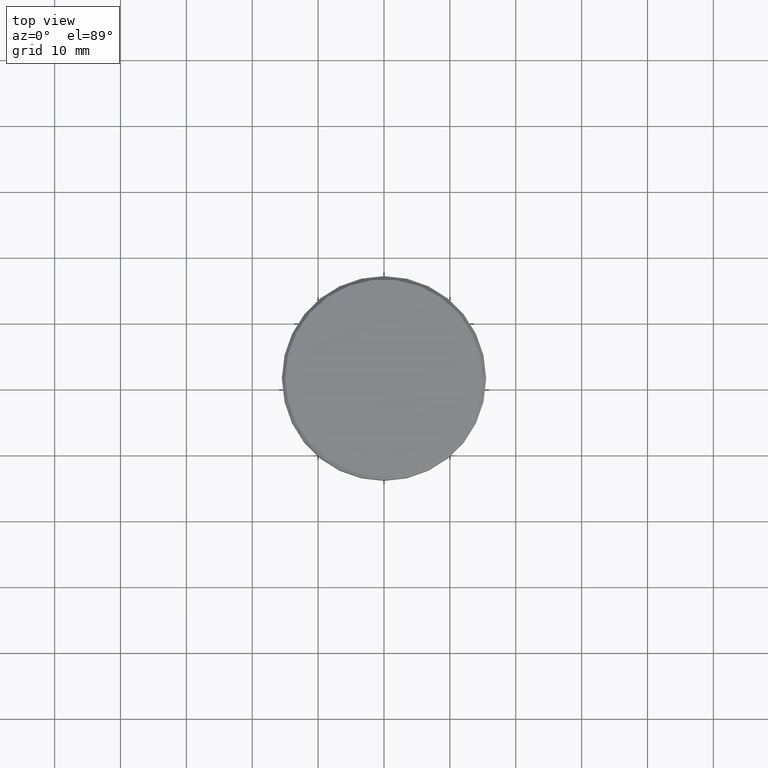
[diagram: clean part render]
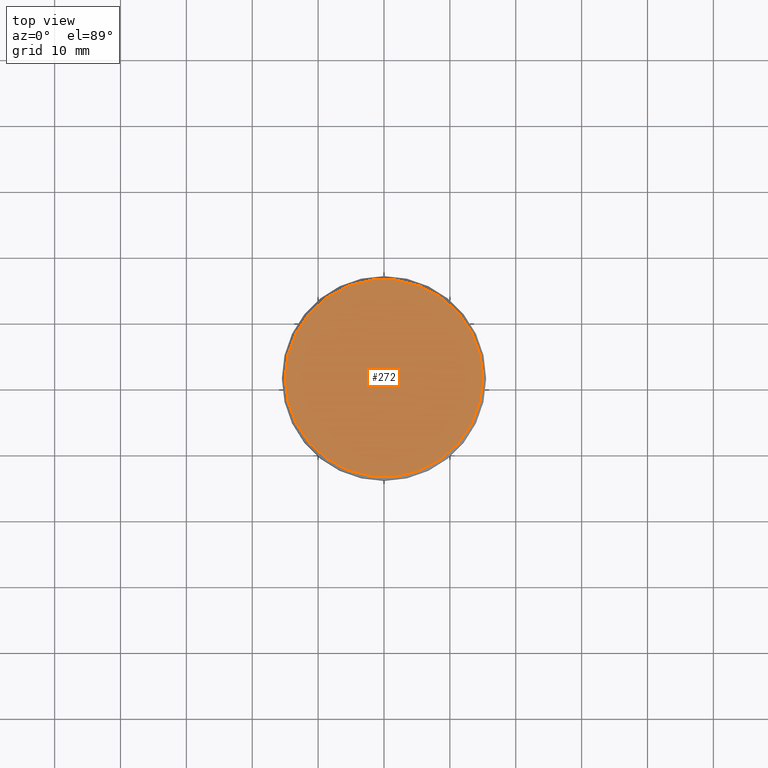
[diagram: same view with one face highlighted and labeled with its STEP entity id]
A machine part, top view. The second image highlights one B-rep face of the part: STEP entity #272.
In plain terms, the highlighted planar face has unit normal (0, -0, 1).
Its self-contained STEP definition (entity closure, byte-faithful):
#15 = CARTESIAN_POINT ( 'NONE',  ( 0.000000000000000000, 0.000000000000000000, 0.000000000000000000 ) ) ;
#138 = ORIENTED_EDGE ( 'NONE', *, *, #340, .T. ) ;
#151 = VERTEX_POINT ( 'NONE', #970 ) ;
#206 = ORIENTED_EDGE ( 'NONE', *, *, #1120, .T. ) ;
#272 = ADVANCED_FACE ( 'NONE', ( #886 ), #801, .T. ) ;
#336 = CIRCLE ( 'NONE', #818, 15.00000000000000000 ) ;
#340 = EDGE_CURVE ( 'NONE', #151, #879, #1148, .T. ) ;
#342 = DIRECTION ( 'NONE',  ( 1.000000000000000000, 0.000000000000000000, 0.000000000000000000 ) ) ;
#358 = DIRECTION ( 'NONE',  ( 1.000000000000000000, 0.000000000000000000, 0.000000000000000000 ) ) ;
#383 = CARTESIAN_POINT ( 'NONE',  ( -15.00000000000000000, 0.000000000000000000, 0.000000000000000000 ) ) ;
#615 = CARTESIAN_POINT ( 'NONE',  ( 0.000000000000000000, 0.000000000000000000, 0.000000000000000000 ) ) ;
#714 = DIRECTION ( 'NONE',  ( 0.000000000000000000, -0.000000000000000000, 1.000000000000000000 ) ) ;
#715 = EDGE_LOOP ( 'NONE', ( #206, #138 ) ) ;
#801 = PLANE ( 'NONE',  #1042 ) ;
#818 = AXIS2_PLACEMENT_3D ( 'NONE', #986, #1159, #358 ) ;
#879 = VERTEX_POINT ( 'NONE', #383 ) ;
#886 = FACE_OUTER_BOUND ( 'NONE', #715, .T. ) ;
#970 = CARTESIAN_POINT ( 'NONE',  ( 15.00000000000000000, 1.867586368699713376E-15, 0.000000000000000000 ) ) ;
#986 = CARTESIAN_POINT ( 'NONE',  ( 0.000000000000000000, 0.000000000000000000, 0.000000000000000000 ) ) ;
#999 = DIRECTION ( 'NONE',  ( -0.000000000000000000, -0.000000000000000000, 1.000000000000000000 ) ) ;
#1042 = AXIS2_PLACEMENT_3D ( 'NONE', #615, #714, #342 ) ;
#1104 = DIRECTION ( 'NONE',  ( 1.000000000000000000, 0.000000000000000000, 0.000000000000000000 ) ) ;
#1120 = EDGE_CURVE ( 'NONE', #879, #151, #336, .T. ) ;
#1133 = AXIS2_PLACEMENT_3D ( 'NONE', #15, #999, #1104 ) ;
#1148 = CIRCLE ( 'NONE', #1133, 15.00000000000000000 ) ;
#1159 = DIRECTION ( 'NONE',  ( -0.000000000000000000, -0.000000000000000000, 1.000000000000000000 ) ) ;